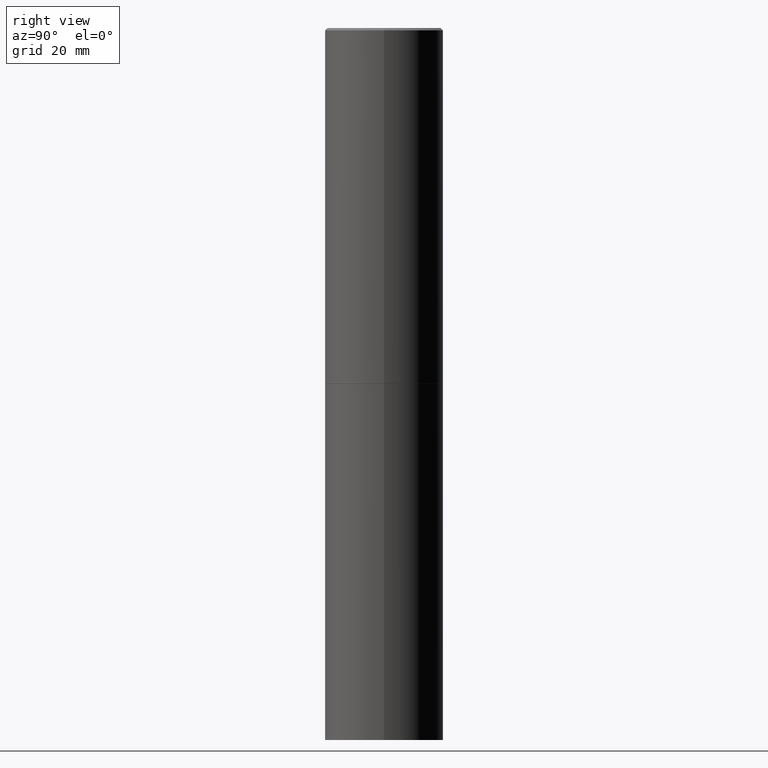
[diagram: clean part render]
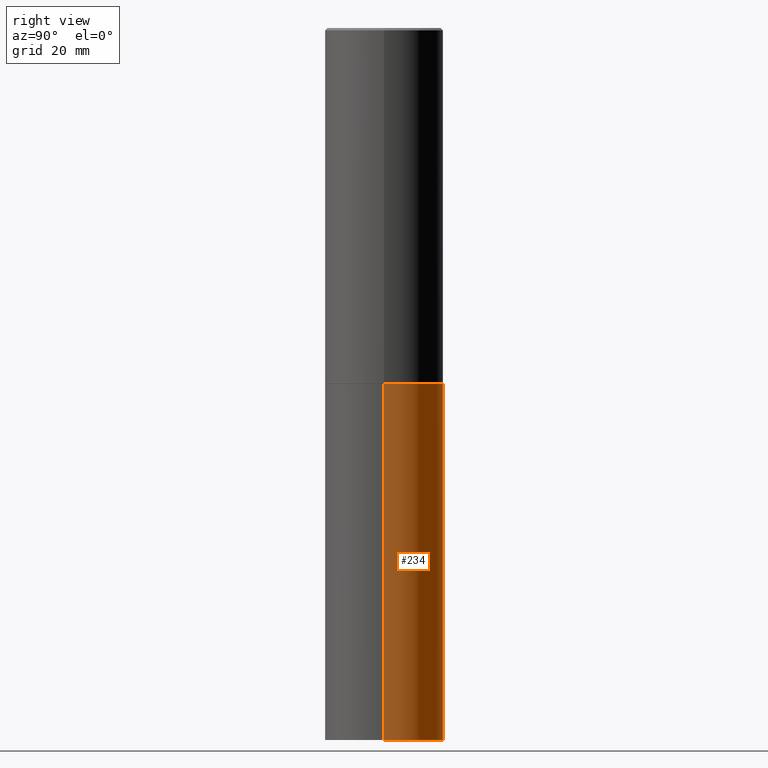
[diagram: same view with one face highlighted and labeled with its STEP entity id]
A machine part, right view. The second image highlights one B-rep face of the part: STEP entity #234.
In plain terms, the highlighted cylindrical surface (partial cylindrical patch) has radius 12.5006 mm, axis along (-0, 0, 1).
Its self-contained STEP definition (entity closure, byte-faithful):
#15 = VECTOR ( 'NONE', #223, 39.37007874015748143 ) ;
#30 = CARTESIAN_POINT ( 'NONE',  ( 1.444171603492632270E-28, -2.061894304653819197E-14, -5.905499999999999972 ) ) ;
#39 = FACE_OUTER_BOUND ( 'NONE', #295, .T. ) ;
#50 = CIRCLE ( 'NONE', #140, 0.4921499999999999764 ) ;
#67 = ORIENTED_EDGE ( 'NONE', *, *, #87, .T. ) ;
#74 = VERTEX_POINT ( 'NONE', #361 ) ;
#75 = EDGE_CURVE ( 'NONE', #74, #102, #50, .T. ) ;
#87 = EDGE_CURVE ( 'NONE', #102, #128, #256, .T. ) ;
#92 = DIRECTION ( 'NONE',  ( 1.000000000000000000, -6.982962677686265922E-15, 4.876176775795935793E-29 ) ) ;
#102 = VERTEX_POINT ( 'NONE', #339 ) ;
#113 = AXIS2_PLACEMENT_3D ( 'NONE', #252, #363, #308 ) ;
#117 = EDGE_CURVE ( 'NONE', #118, #128, #267, .T. ) ;
#118 = VERTEX_POINT ( 'NONE', #164 ) ;
#126 = CARTESIAN_POINT ( 'NONE',  ( 0.4921499999999999764, -3.436665081823295777E-15, 2.399810400207969603E-29 ) ) ;
#128 = VERTEX_POINT ( 'NONE', #319 ) ;
#140 = AXIS2_PLACEMENT_3D ( 'NONE', #30, #359, #227 ) ;
#143 = ORIENTED_EDGE ( 'NONE', *, *, #117, .F. ) ;
#149 = ORIENTED_EDGE ( 'NONE', *, *, #282, .F. ) ;
#164 = CARTESIAN_POINT ( 'NONE',  ( 0.4921499999999999764, -1.374596203102545079E-14, -2.952700000000000102 ) ) ;
#204 = CYLINDRICAL_SURFACE ( 'NONE', #323, 0.4921499999999999764 ) ;
#223 = DIRECTION ( 'NONE',  ( -2.445468806185136877E-29, 3.491481338843145188E-15, 1.000000000000000000 ) ) ;
#224 = ORIENTED_EDGE ( 'NONE', *, *, #75, .T. ) ;
#227 = DIRECTION ( 'NONE',  ( 1.000000000000000000, -6.982962677686265922E-15, 0.000000000000000000 ) ) ;
#234 = ADVANCED_FACE ( 'NONE', ( #39 ), #204, .T. ) ;
#252 = CARTESIAN_POINT ( 'NONE',  ( 7.220735744022852519E-29, -1.030929694920215502E-14, -2.952700000000000102 ) ) ;
#256 = LINE ( 'NONE', #366, #15 ) ;
#259 = DIRECTION ( 'NONE',  ( -2.445468806185136597E-29, 3.491481338843145583E-15, 1.000000000000000000 ) ) ;
#267 = CIRCLE ( 'NONE', #113, 0.4921499999999999764 ) ;
#268 = LINE ( 'NONE', #126, #314 ) ;
#282 = EDGE_CURVE ( 'NONE', #74, #118, #268, .T. ) ;
#288 = CARTESIAN_POINT ( 'NONE',  ( 0.000000000000000000, 0.000000000000000000, 0.000000000000000000 ) ) ;
#295 = EDGE_LOOP ( 'NONE', ( #224, #67, #143, #149 ) ) ;
#308 = DIRECTION ( 'NONE',  ( 1.000000000000000000, -6.982962677686265922E-15, 0.000000000000000000 ) ) ;
#314 = VECTOR ( 'NONE', #353, 39.37007874015748143 ) ;
#319 = CARTESIAN_POINT ( 'NONE',  ( -0.4921499999999999764, -1.196718392382684217E-14, -2.952700000000000102 ) ) ;
#323 = AXIS2_PLACEMENT_3D ( 'NONE', #288, #259, #92 ) ;
#339 = CARTESIAN_POINT ( 'NONE',  ( -0.4921499999999999764, -1.196718392382684217E-14, -5.905499999999999972 ) ) ;
#353 = DIRECTION ( 'NONE',  ( -2.445468806185136877E-29, 3.491481338843145188E-15, 1.000000000000000000 ) ) ;
#359 = DIRECTION ( 'NONE',  ( -2.445468806185136597E-29, 3.491481338843145583E-15, 1.000000000000000000 ) ) ;
#361 = CARTESIAN_POINT ( 'NONE',  ( 0.4921499999999999764, -2.405560812836148932E-14, -5.905499999999999972 ) ) ;
#363 = DIRECTION ( 'NONE',  ( -2.445468806185136597E-29, 3.491481338843145583E-15, 1.000000000000000000 ) ) ;
#366 = CARTESIAN_POINT ( 'NONE',  ( -0.4921499999999999764, 3.496936074043332897E-15, -2.420853904668951509E-29 ) ) ;